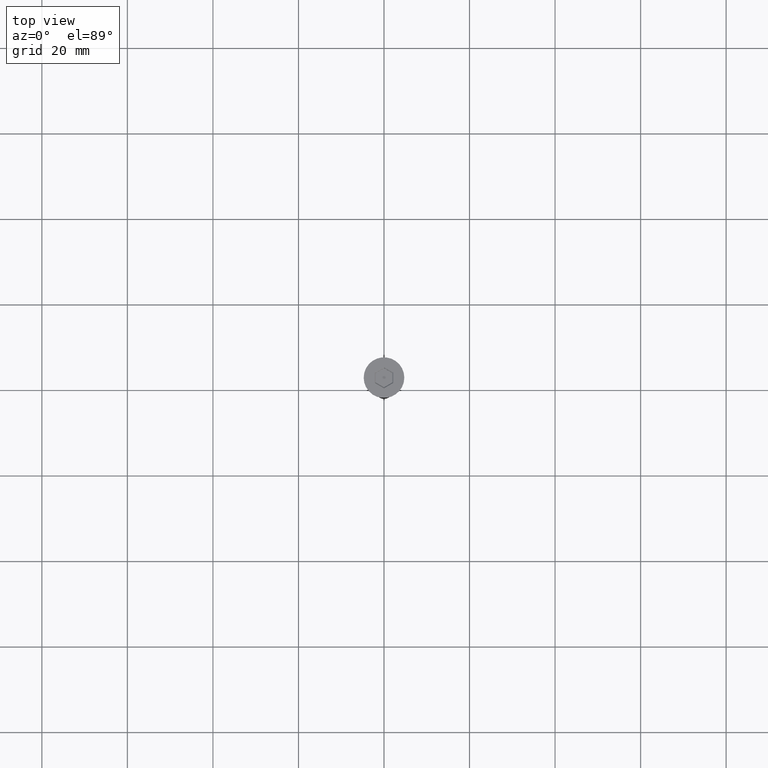
[diagram: clean part render]
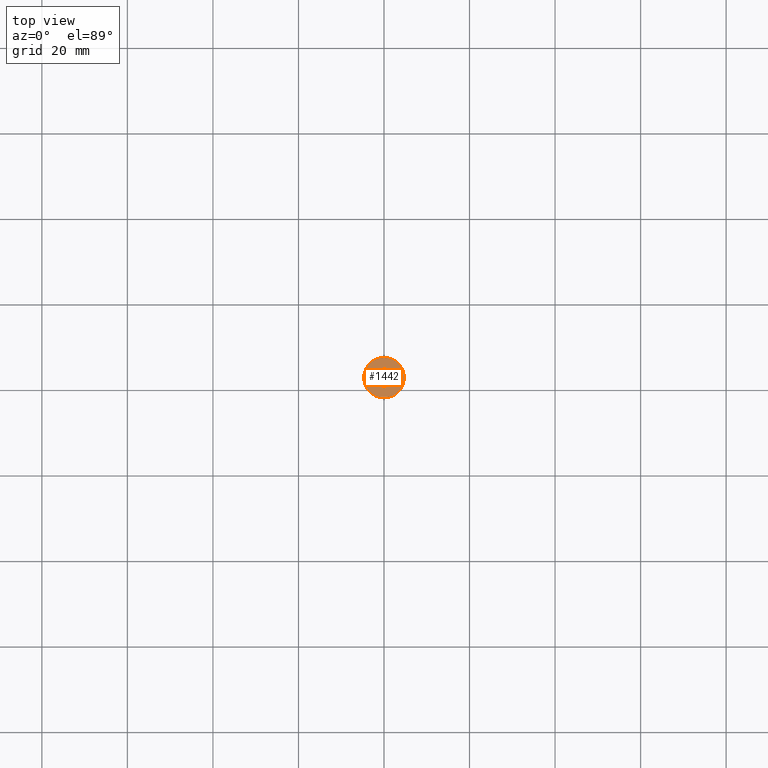
[diagram: same view with one face highlighted and labeled with its STEP entity id]
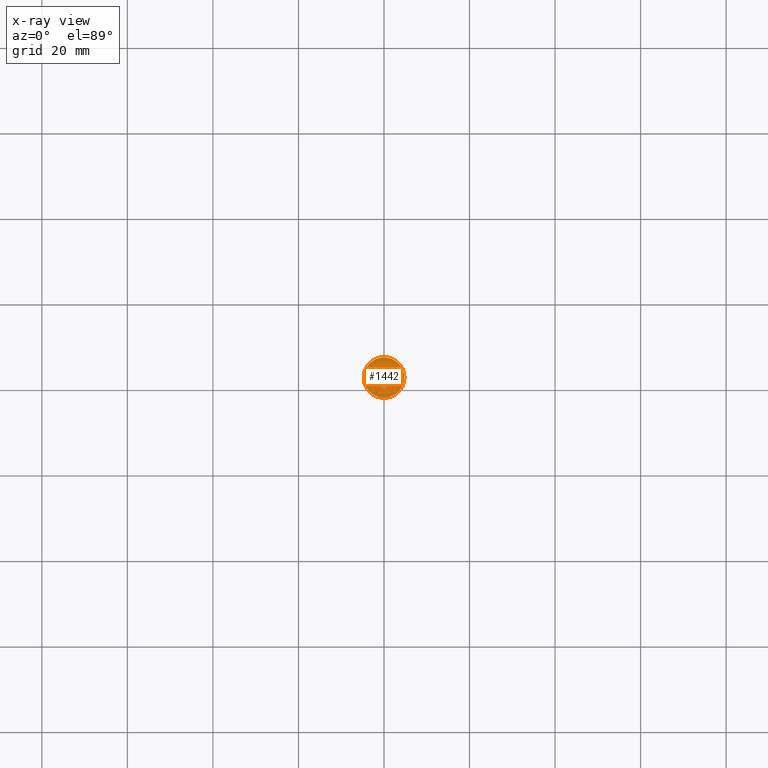
[diagram: x-ray of the same camera — body ghosted, the highlighted face saturated]
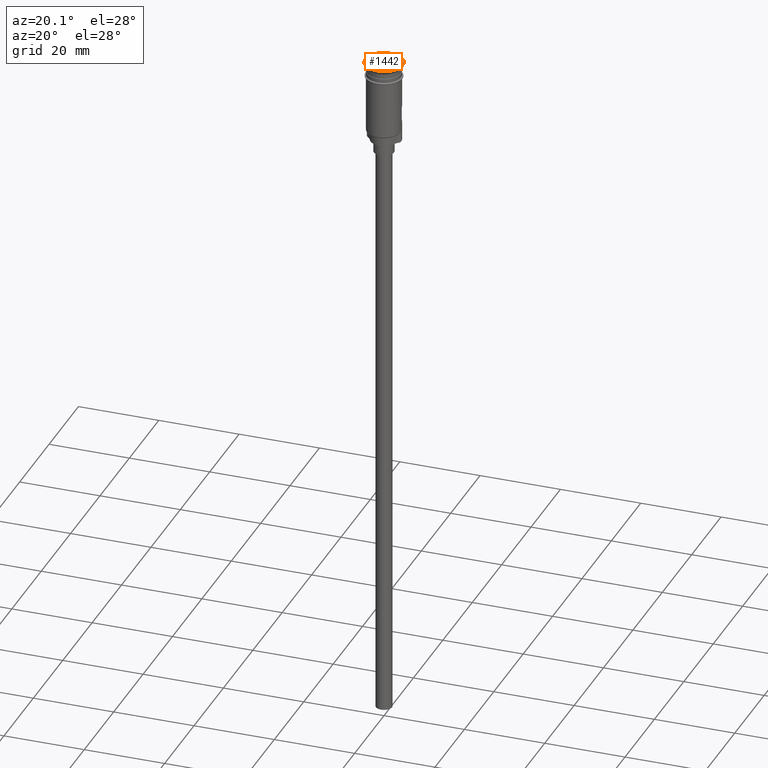
[diagram: same view with one face highlighted and labeled with its STEP entity id]
A machine part, top view. The second image highlights one B-rep face of the part: STEP entity #1442.
The next image is the same camera in x-ray: the body ghosted, the highlighted face saturated — about 0% of this face is hidden behind the body in this view.
A second angle (auxiliary view) of the same face is appended — the face is thin or edge-on in the first view.
In plain terms, the highlighted planar face has unit normal (0, -0, 1).
Its self-contained STEP definition (entity closure, byte-faithful):
#53 = CARTESIAN_POINT ( 'NONE',  ( 0.000000000000000000, 0.000000000000000000, 0.000000000000000000 ) ) ;
#70 = EDGE_LOOP ( 'NONE', ( #1464, #509, #471, #1540, #1164, #904 ) ) ;
#94 = CARTESIAN_POINT ( 'NONE',  ( 0.09999999999999617528, -2.424871130596422564, 0.000000000000000000 ) ) ;
#103 = AXIS2_PLACEMENT_3D ( 'NONE', #53, #909, #1056 ) ;
#200 = DIRECTION ( 'NONE',  ( -1.926044357355332218E-16, -1.000000000000000000, 0.000000000000000000 ) ) ;
#324 = PLANE ( 'NONE',  #103 ) ;
#327 = VERTEX_POINT ( 'NONE', #453 ) ;
#328 = EDGE_CURVE ( 'NONE', #1241, #457, #467, .T. ) ;
#333 = DIRECTION ( 'NONE',  ( 9.630221786776664787E-17, 1.000000000000000000, 0.000000000000000000 ) ) ;
#380 = CARTESIAN_POINT ( 'NONE',  ( 2.049999999999996714, 1.299038105676652455, 0.000000000000000000 ) ) ;
#389 = VERTEX_POINT ( 'NONE', #724 ) ;
#402 = DIRECTION ( 'NONE',  ( -0.000000000000000000, -0.000000000000000000, 1.000000000000000000 ) ) ;
#403 = LINE ( 'NONE', #1285, #636 ) ;
#422 = AXIS2_PLACEMENT_3D ( 'NONE', #1524, #402, #1261 ) ;
#444 = VECTOR ( 'NONE', #832, 1000.000000000000000 ) ;
#453 = CARTESIAN_POINT ( 'NONE',  ( 4.750000000000000000, 0.000000000000000000, 0.000000000000000000 ) ) ;
#457 = VERTEX_POINT ( 'NONE', #1476 ) ;
#467 = LINE ( 'NONE', #970, #859 ) ;
#471 = ORIENTED_EDGE ( 'NONE', *, *, #634, .T. ) ;
#472 = LINE ( 'NONE', #1457, #788 ) ;
#509 = ORIENTED_EDGE ( 'NONE', *, *, #1185, .T. ) ;
#527 = VERTEX_POINT ( 'NONE', #1348 ) ;
#547 = FACE_OUTER_BOUND ( 'NONE', #745, .T. ) ;
#552 = DIRECTION ( 'NONE',  ( 0.8660254037844385966, 0.5000000000000002220, 0.000000000000000000 ) ) ;
#582 = VERTEX_POINT ( 'NONE', #672 ) ;
#597 = EDGE_CURVE ( 'NONE', #389, #582, #403, .T. ) ;
#634 = EDGE_CURVE ( 'NONE', #667, #527, #1048, .T. ) ;
#636 = VECTOR ( 'NONE', #906, 1000.000000000000114 ) ;
#667 = VERTEX_POINT ( 'NONE', #1279 ) ;
#672 = CARTESIAN_POINT ( 'NONE',  ( -2.149999999999994582, -1.241303078757691303, 0.000000000000000000 ) ) ;
#724 = CARTESIAN_POINT ( 'NONE',  ( -6.517717499969021618E-16, -2.482606157515383050, 0.000000000000000000 ) ) ;
#745 = EDGE_LOOP ( 'NONE', ( #828, #1145 ) ) ;
#746 = EDGE_CURVE ( 'NONE', #457, #389, #957, .T. ) ;
#788 = VECTOR ( 'NONE', #333, 1000.000000000000000 ) ;
#828 = ORIENTED_EDGE ( 'NONE', *, *, #1083, .T. ) ;
#832 = DIRECTION ( 'NONE',  ( -0.8660254037844387076, -0.4999999999999998335, 0.000000000000000000 ) ) ;
#859 = VECTOR ( 'NONE', #200, 1000.000000000000000 ) ;
#875 = DIRECTION ( 'NONE',  ( 0.8660254037844385966, -0.5000000000000001110, 0.000000000000000000 ) ) ;
#904 = ORIENTED_EDGE ( 'NONE', *, *, #746, .T. ) ;
#906 = DIRECTION ( 'NONE',  ( -0.8660254037844385966, 0.5000000000000001110, 0.000000000000000000 ) ) ;
#909 = DIRECTION ( 'NONE',  ( 0.000000000000000000, -0.000000000000000000, 1.000000000000000000 ) ) ;
#917 = AXIS2_PLACEMENT_3D ( 'NONE', #1292, #1527, #1287 ) ;
#957 = LINE ( 'NONE', #94, #444 ) ;
#963 = CARTESIAN_POINT ( 'NONE',  ( 2.149999999999993250, 1.241303078757691969, 0.000000000000000000 ) ) ;
#970 = CARTESIAN_POINT ( 'NONE',  ( 2.149999999999992806, -1.125833024919770331, 0.000000000000000000 ) ) ;
#1006 = VERTEX_POINT ( 'NONE', #1017 ) ;
#1017 = CARTESIAN_POINT ( 'NONE',  ( -4.750000000000000000, 5.817072295949927426E-16, 0.000000000000000000 ) ) ;
#1018 = CIRCLE ( 'NONE', #917, 4.750000000000000000 ) ;
#1048 = LINE ( 'NONE', #1517, #1248 ) ;
#1056 = DIRECTION ( 'NONE',  ( 1.000000000000000000, 0.000000000000000000, 0.000000000000000000 ) ) ;
#1083 = EDGE_CURVE ( 'NONE', #327, #1006, #1582, .T. ) ;
#1125 = LINE ( 'NONE', #380, #1558 ) ;
#1145 = ORIENTED_EDGE ( 'NONE', *, *, #1484, .T. ) ;
#1164 = ORIENTED_EDGE ( 'NONE', *, *, #328, .T. ) ;
#1185 = EDGE_CURVE ( 'NONE', #582, #667, #472, .T. ) ;
#1241 = VERTEX_POINT ( 'NONE', #963 ) ;
#1248 = VECTOR ( 'NONE', #552, 999.9999999999998863 ) ;
#1261 = DIRECTION ( 'NONE',  ( 1.000000000000000000, 0.000000000000000000, 0.000000000000000000 ) ) ;
#1279 = CARTESIAN_POINT ( 'NONE',  ( -2.149999999999994138, 1.241303078757690859, 0.000000000000000000 ) ) ;
#1285 = CARTESIAN_POINT ( 'NONE',  ( -2.049999999999997602, -1.299038105676652011, 0.000000000000000000 ) ) ;
#1287 = DIRECTION ( 'NONE',  ( 1.000000000000000000, 0.000000000000000000, 0.000000000000000000 ) ) ;
#1292 = CARTESIAN_POINT ( 'NONE',  ( 0.000000000000000000, 0.000000000000000000, 0.000000000000000000 ) ) ;
#1307 = EDGE_CURVE ( 'NONE', #527, #1241, #1125, .T. ) ;
#1348 = CARTESIAN_POINT ( 'NONE',  ( 3.890099324841783067E-16, 2.482606157515383494, 0.000000000000000000 ) ) ;
#1359 = FACE_BOUND ( 'NONE', #70, .T. ) ;
#1442 = ADVANCED_FACE ( 'NONE', ( #1359, #547 ), #324, .T. ) ;
#1457 = CARTESIAN_POINT ( 'NONE',  ( -2.149999999999994138, 1.125833024919770109, 0.000000000000000000 ) ) ;
#1464 = ORIENTED_EDGE ( 'NONE', *, *, #597, .T. ) ;
#1476 = CARTESIAN_POINT ( 'NONE',  ( 2.149999999999992806, -1.241303078757692413, 0.000000000000000000 ) ) ;
#1484 = EDGE_CURVE ( 'NONE', #1006, #327, #1018, .T. ) ;
#1517 = CARTESIAN_POINT ( 'NONE',  ( -0.09999999999999692468, 2.424871130596422564, 0.000000000000000000 ) ) ;
#1524 = CARTESIAN_POINT ( 'NONE',  ( 0.000000000000000000, 0.000000000000000000, 0.000000000000000000 ) ) ;
#1527 = DIRECTION ( 'NONE',  ( -0.000000000000000000, -0.000000000000000000, 1.000000000000000000 ) ) ;
#1540 = ORIENTED_EDGE ( 'NONE', *, *, #1307, .T. ) ;
#1558 = VECTOR ( 'NONE', #875, 1000.000000000000114 ) ;
#1582 = CIRCLE ( 'NONE', #422, 4.750000000000000000 ) ;